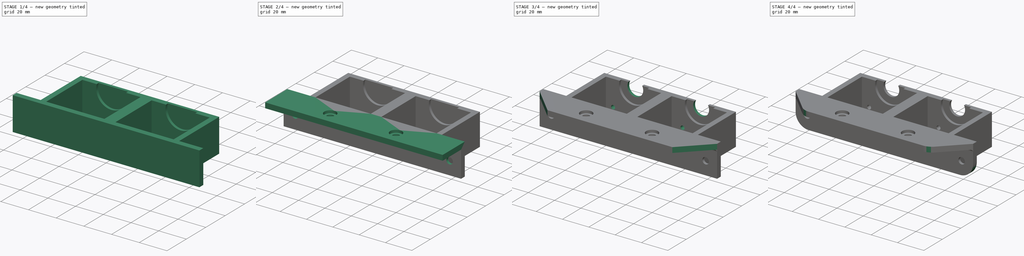
[diagram: build sequence overview — one tinted view per stage of 4, left to right]
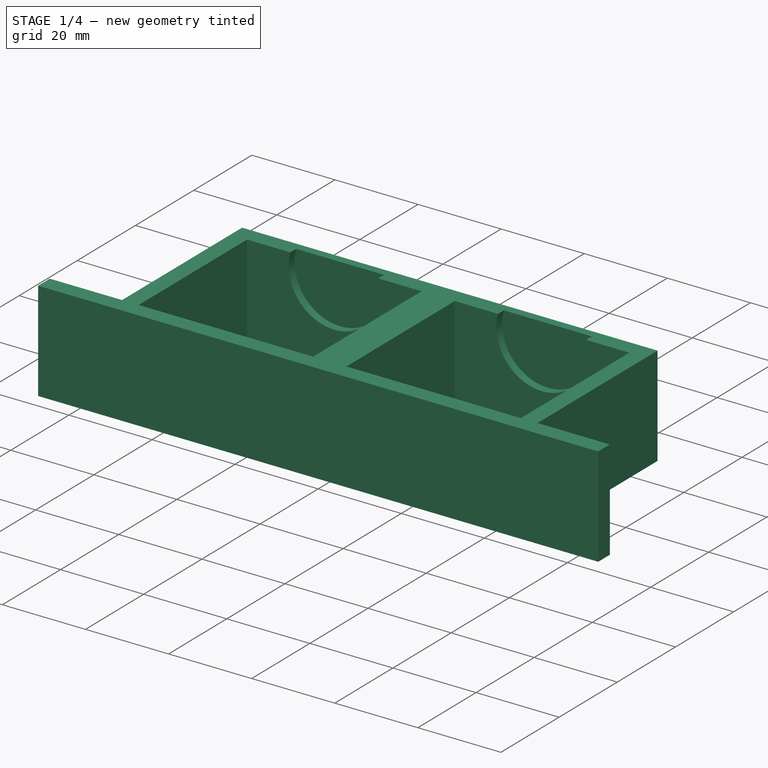
[diagram: stage 1 of 4 — iso view after this stage's code; geometry added in this stage tinted green]
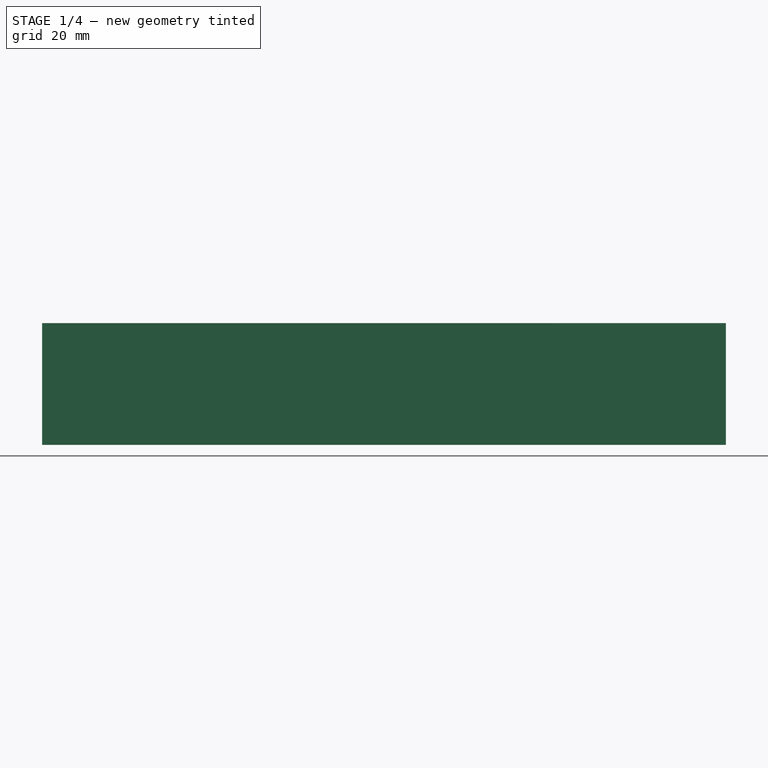
[diagram: stage 1 of 4 — front view after this stage's code; geometry added in this stage tinted green]
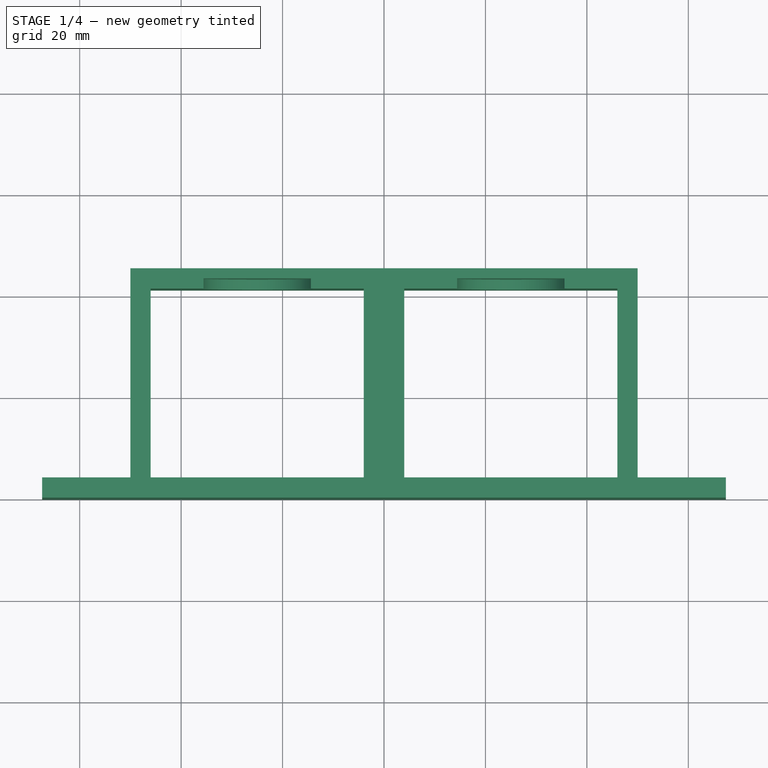
[diagram: stage 1 of 4 — top view after this stage's code; geometry added in this stage tinted green]
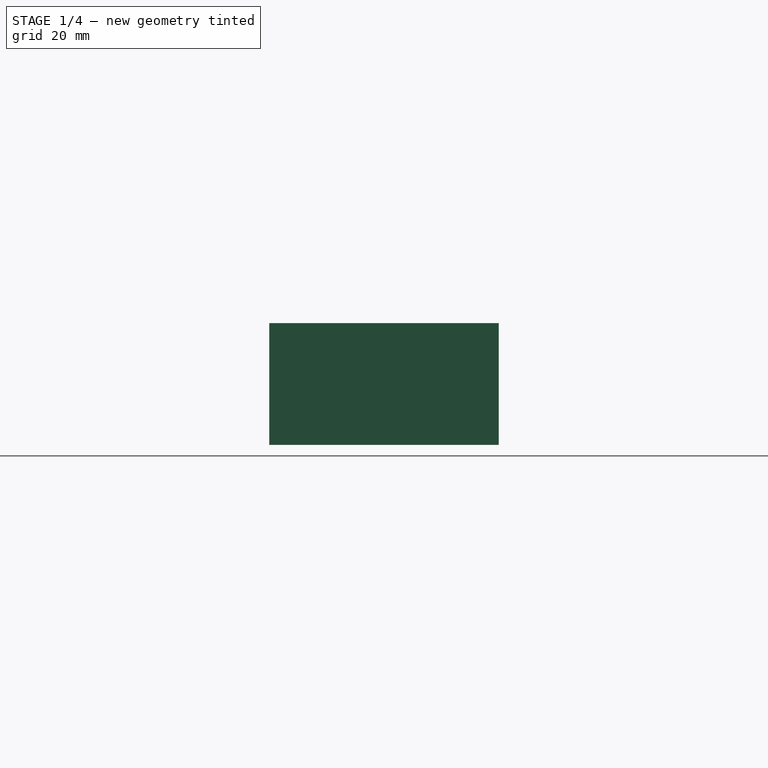
[diagram: stage 1 of 4 — right view after this stage's code; geometry added in this stage tinted green]
FCSTD DOCUMENT  (FreeCAD 0.18R15969 (Git))
Label: motormount
License: All rights reserved
LicenseURL: http://en.wikipedia.org/wiki/All_rights_reserved
objects: Sketcher::SketchObject×7, PartDesign::Fillet×3, PartDesign::Pad×2, PartDesign::Pocket×2, PartDesign::Hole×2, PartDesign::Chamfer×1, PartDesign::Body×1
note: 24 computed .brp shape members not serialized (recipe doc carries the construction recipe); baked Part::Feature solids carry a one-line shape summary decoded from their .brp

FEATURE [Sketcher::SketchObject] Sketch
  MapMode = 5
  Support = -> [XY_Plane]
  sketch-geometry (21):
    g0: LineSegment StartX=-67.4016 StartY=0 StartZ=0 EndX=67.4016 EndY=0 EndZ=0
    g1: LineSegment StartX=-67.4016 StartY=0 StartZ=0 EndX=-67.4016 EndY=4 EndZ=0
    g2: LineSegment StartX=67.4016 StartY=0 StartZ=0 EndX=67.4016 EndY=4 EndZ=0
    g3: LineSegment StartX=-67.4016 StartY=4 StartZ=0 EndX=-50 EndY=4 EndZ=0
    g4: LineSegment StartX=67.4016 StartY=4 StartZ=0 EndX=50 EndY=4 EndZ=0
    g5: LineSegment StartX=-50 StartY=4 StartZ=0 EndX=-50 EndY=45.25 EndZ=0
    g6: LineSegment StartX=-50 StartY=45.25 StartZ=0 EndX=50 EndY=45.25 EndZ=0
    g7: LineSegment StartX=50 StartY=45.25 StartZ=0 EndX=50 EndY=4 EndZ=0
    g8: LineSegment [constr] StartX=0 StartY=0 StartZ=0 EndX=-50 EndY=4 EndZ=0
    g9: LineSegment [constr] StartX=0 StartY=0 StartZ=0 EndX=50 EndY=4 EndZ=0
    g10: LineSegment StartX=46 StartY=41.25 StartZ=0 EndX=46 EndY=4 EndZ=0
    g11: LineSegment StartX=-46 StartY=4 StartZ=0 EndX=-46 EndY=41.25 EndZ=0
    g12: LineSegment [constr] StartX=-46 StartY=4 StartZ=0 EndX=0 EndY=0 EndZ=0
    g13: LineSegment [constr] StartX=0 StartY=0 StartZ=0 EndX=46 EndY=4 EndZ=0
    g14: LineSegment StartX=-46 StartY=41.25 StartZ=0 EndX=-4 EndY=41.25 EndZ=0
    g15: LineSegment StartX=46 StartY=41.25 StartZ=0 EndX=4 EndY=41.25 EndZ=0
    g16: LineSegment StartX=-46 StartY=4 StartZ=0 EndX=-4 EndY=4 EndZ=0
    g17: LineSegment StartX=46 StartY=4 StartZ=0 EndX=4 EndY=4 EndZ=0
    g18: LineSegment StartX=-4 StartY=41.25 StartZ=0 EndX=-4 EndY=4 EndZ=0
    g19: LineSegment StartX=4 StartY=41.25 StartZ=0 EndX=4 EndY=4 EndZ=0
    g20: LineSegment [constr] StartX=-4 StartY=41.25 StartZ=0 EndX=4 EndY=41.25 EndZ=0
  constraints (57):
    c: PointOnObject(g0,g-1)
    c: PointOnObject(g0,g-1)
    c: Coincident(g1,g0)
    c: Vertical(g1)
    c: Coincident(g2,g0)
    c: Vertical(g2)
    c: Equal(g1,g2)
    c: Coincident(g3,g1)
    c: Horizontal(g3)
    c: Coincident(g4,g2)
    c: Horizontal(g4)
    c: Equal(g3,g4)
    c: Coincident(g5,g3)
    c: Vertical(g5)
    c: Coincident(g6,g5)
    c: Horizontal(g6)
    c: Coincident(g7,g6)
    c: Coincident(g7,g4)
    c: Vertical(g7)
    c: Coincident(g8,g-1)
    c: Coincident(g8,g3)
    c: Coincident(g9,g-1)
    c: Coincident(g9,g4)
    c: Equal(g9,g8)
    c: Vertical(g10)
    c: Vertical(g11)
    c: Coincident(g12,g-1)
    c: Coincident(g13,g-1)
    c: Coincident(g13,g10)
    c: Equal(g13,g12)
    c: DistanceY(g1,g1) = 4
    c: DistanceY(g0,g11) = 4
    c: DistanceX(g11,g10) = 92
    c: DistanceY(g11,g11) = 37.25
    c: Coincident(g14,g11)
    c: Horizontal(g14)
    c: Coincident(g15,g10)
    c: Horizontal(g15)
    c: Equal(g14,g15)
    c: Coincident(g16,g11)
    c: Horizontal(g16)
    c: Coincident(g17,g10)
    c: Horizontal(g17)
    c: Equal(g17,g16)
    c: Equal(g16,g14)
    c: DistanceX(g14,g14) = 42
    c: Coincident(g18,g14)
    c: Coincident(g18,g16)
    c: Coincident(g19,g15)
    c: Coincident(g19,g17)
    c: Coincident(g20,g14)
    c: Horizontal(g20)
    c: Coincident(g20,g15)
    c: Coincident(g11,g12)
    c: Equal(g19,g18)
    c: DistanceX(g10,g4) = 4
    c: DistanceY(g10,g6) = 4
FEATURE [PartDesign::Pad] Pad
  Length = 24
  Length2 = 100
  Profile = -> Sketch
  Refine = true
  Type = 0
FEATURE [Sketcher::SketchObject] Sketch001
  ExternalGeometry = -> [Pad]
  MapMode = 5
  Placement = pos=(0,41.25,0) rot=(1,0,0;1.5708rad)
  Support = -> [Pad]
  sketch-geometry (6):
    g0: Circle CenterX=-25 CenterY=21 CenterZ=0 NormalX=0 NormalY=0 NormalZ=1 AngleXU=0 Radius=11
    g1: Circle CenterX=25 CenterY=21 CenterZ=0 NormalX=0 NormalY=0 NormalZ=1 AngleXU=0 Radius=11
    g2: LineSegment [constr] StartX=-46 StartY=24 StartZ=0 EndX=-25 EndY=21 EndZ=0
    g3: LineSegment [constr] StartX=-25 StartY=21 StartZ=0 EndX=-4 EndY=24 EndZ=0
    g4: LineSegment [constr] StartX=4 StartY=24 StartZ=0 EndX=25 EndY=21 EndZ=0
    g5: LineSegment [constr] StartX=25 StartY=21 StartZ=0 EndX=46 EndY=24 EndZ=0
  constraints (14):
    c: Radius(g0) = 11
    c: Equal(g0,g1)
    c: Coincident(g2,g-3)
    c: Coincident(g2,g0)
    c: Coincident(g3,g0)
    c: Coincident(g3,g-3)
    c: Coincident(g4,g-4)
    c: Coincident(g4,g1)
    c: Coincident(g5,g1)
    c: Coincident(g5,g-4)
    c: Equal(g2,g3)
    c: Equal(g3,g4)
    c: Equal(g4,g5)
    c: DistanceY(g-1,g0) = 21
FEATURE [PartDesign::Pocket] Pocket
  BaseFeature = -> Pad
  Length = 2
  Length2 = 100
  Profile = -> Sketch001
  Refine = true
  Type = 0
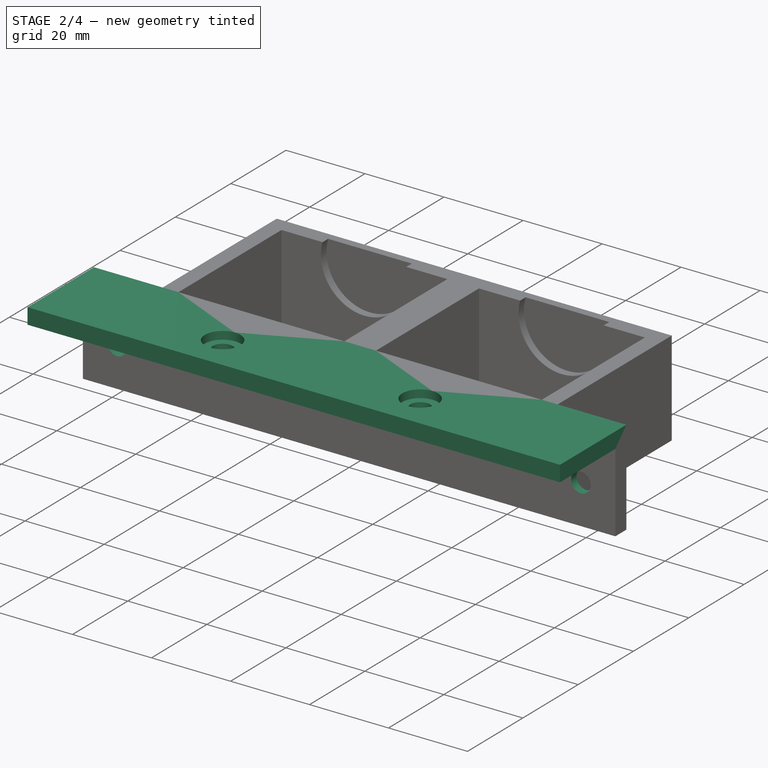
[diagram: stage 2 of 4 — iso view after this stage's code; geometry added in this stage tinted green]
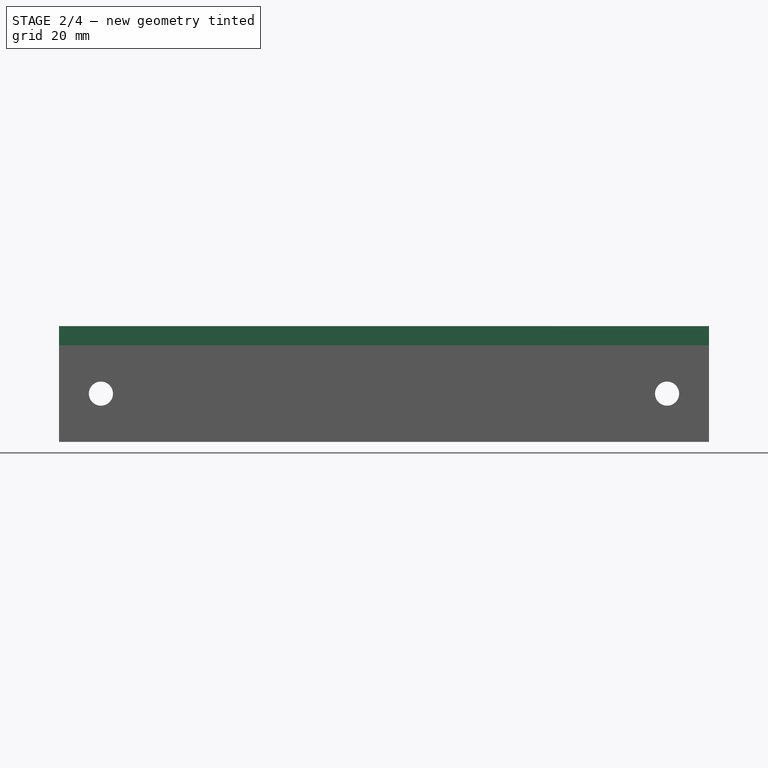
[diagram: stage 2 of 4 — front view after this stage's code; geometry added in this stage tinted green]
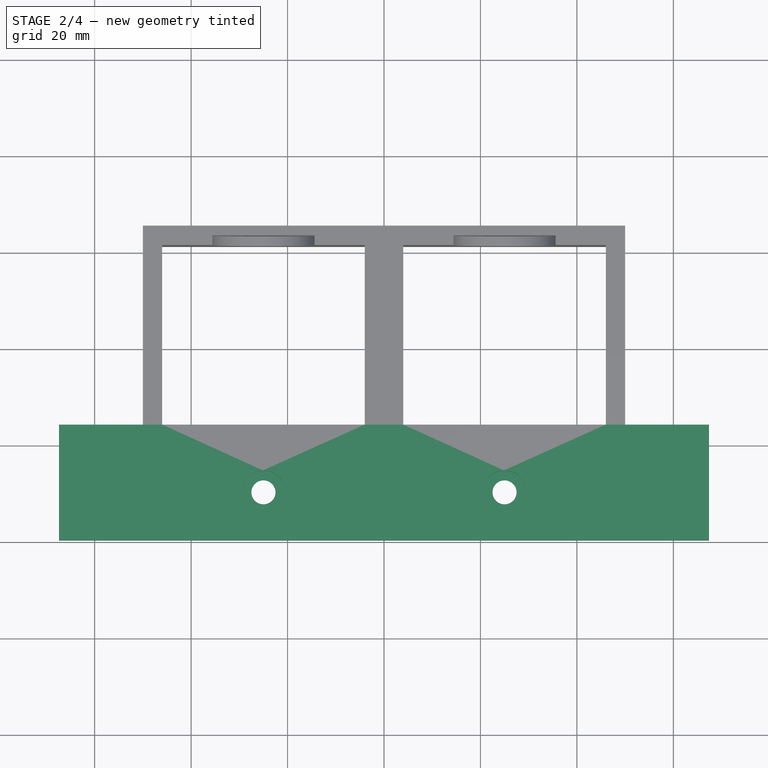
[diagram: stage 2 of 4 — top view after this stage's code; geometry added in this stage tinted green]
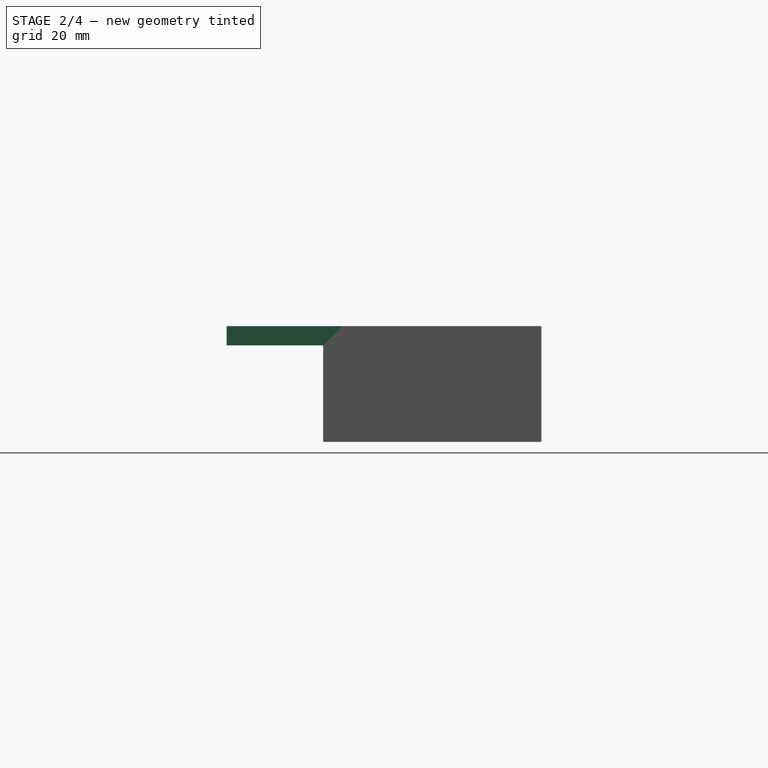
[diagram: stage 2 of 4 — right view after this stage's code; geometry added in this stage tinted green]
FEATURE [Sketcher::SketchObject] Sketch003
  MapMode = 5
  Placement = pos=(0,0,0) rot=(1,0,0;1.5708rad)
  sketch-geometry (4):
    g0: LineSegment StartX=-67.4016 StartY=24 StartZ=0 EndX=67.4016 EndY=24 EndZ=0
    g1: LineSegment StartX=67.4016 StartY=24 StartZ=0 EndX=67.4016 EndY=20 EndZ=0
    g2: LineSegment StartX=67.4016 StartY=20 StartZ=0 EndX=-67.4016 EndY=20 EndZ=0
    g3: LineSegment StartX=-67.4016 StartY=20 StartZ=0 EndX=-67.4016 EndY=24 EndZ=0
  constraints (8):
    c: Coincident(g0,g1)
    c: Coincident(g1,g2)
    c: Coincident(g2,g3)
    c: Coincident(g3,g0)
    c: Horizontal(g2)
    c: Vertical(g1)
    c: Vertical(g3)
    c: DistanceY(g1,g1) = 4
FEATURE [PartDesign::Pad] Pad002
  BaseFeature = -> Pocket
  Length = 20
  Length2 = 100
  Profile = -> Sketch003
  Refine = true
  Type = 0
FEATURE [Sketcher::SketchObject] Sketch004
  ExternalGeometry = -> [Pad002]
  MapMode = 5
  Placement = pos=(0,4,0) rot=(0,0.707107,0.707107;3.14159rad)
  sketch-geometry (6):
    g0: LineSegment [constr] StartX=-67.2839 StartY=23.8324 StartZ=0 EndX=-58.7008 EndY=10 EndZ=0
    g1: LineSegment [constr] StartX=-50.1178 StartY=23.8324 StartZ=0 EndX=-58.7008 EndY=10 EndZ=0
    g2: LineSegment [constr] StartX=50.1178 StartY=23.8324 StartZ=0 EndX=58.7008 EndY=10 EndZ=0
    g3: LineSegment [constr] StartX=67.2839 StartY=23.8324 StartZ=0 EndX=58.7008 EndY=10 EndZ=0
    g4: Circle CenterX=58.7008 CenterY=10 CenterZ=0 NormalX=0 NormalY=0 NormalZ=1 AngleXU=0 Radius=4.26046
    g5: Circle CenterX=-58.7008 CenterY=10 CenterZ=0 NormalX=0 NormalY=0 NormalZ=1 AngleXU=0 Radius=4.93613
  constraints (8):
    c: Coincident(g1,g0)
    c: Equal(g0,g1)
    c: Coincident(g3,g2)
    c: Equal(g2,g3)
    c: Coincident(g4,g2)
    c: Coincident(g5,g0)
    c: DistanceY(g-3,g5) = 10
    c: DistanceY(g-4,g4) = 10
FEATURE [PartDesign::Hole] Hole
  BaseFeature = -> Pad002
  Depth = 25
  DepthType = 0
  Diameter = 5
  DrillPoint = 1
  DrillPointAngle = 118
  HoleCutCountersinkAngle = 90
  HoleCutDepth = 2
  HoleCutDiameter = 9
  HoleCutType = 1
  ModelActualThread = false
  Profile = -> Sketch004
  Refine = true
  Tapered = false
  TaperedAngle = 90
  ThreadAngle = 0
  ThreadClass = 0
  ThreadCutOffInner = 0
  ThreadCutOffOuter = 0
  ThreadDirection = 0
  ThreadFit = 0
  ThreadPitch = 0
  ThreadSize = 0
  ThreadType = 0
  Threaded = false
FEATURE [Sketcher::SketchObject] Sketch005
  MapMode = 5
  Placement = pos=(0,1.2e-15,24) rot=(0,0,1;0rad)
  Support = -> [Hole]
  sketch-geometry (2):
    g0: Circle CenterX=-25 CenterY=-10 CenterZ=0 NormalX=0 NormalY=0 NormalZ=1 AngleXU=0 Radius=12.1715
    g1: Circle CenterX=25 CenterY=-10 CenterZ=0 NormalX=0 NormalY=0 NormalZ=1 AngleXU=0 Radius=11.9684
  constraints (4):
    c: DistanceY(g1,g-1) = 10
    c: DistanceY(g0,g-1) = 10
    c: DistanceX(g0,g-1) = 25
    c: DistanceX(g-1,g1) = 25
FEATURE [PartDesign::Hole] Hole001
  BaseFeature = -> Hole
  Depth = 25
  DepthType = 0
  Diameter = 5
  DrillPoint = 1
  DrillPointAngle = 118
  HoleCutCountersinkAngle = 90
  HoleCutDepth = 2
  HoleCutDiameter = 9
  HoleCutType = 1
  ModelActualThread = false
  Profile = -> Sketch005
  Refine = true
  Tapered = false
  TaperedAngle = 90
  ThreadAngle = 0
  ThreadClass = 0
  ThreadCutOffInner = 0
  ThreadCutOffOuter = 0
  ThreadDirection = 0
  ThreadFit = 0
  ThreadPitch = 0
  ThreadSize = 0
  ThreadType = 0
  Threaded = false
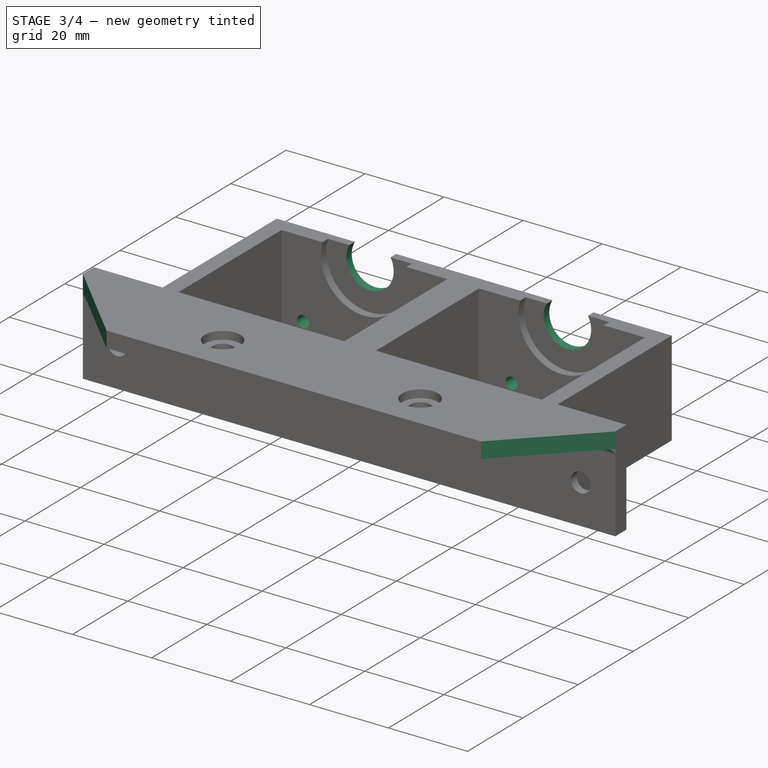
[diagram: stage 3 of 4 — iso view after this stage's code; geometry added in this stage tinted green]
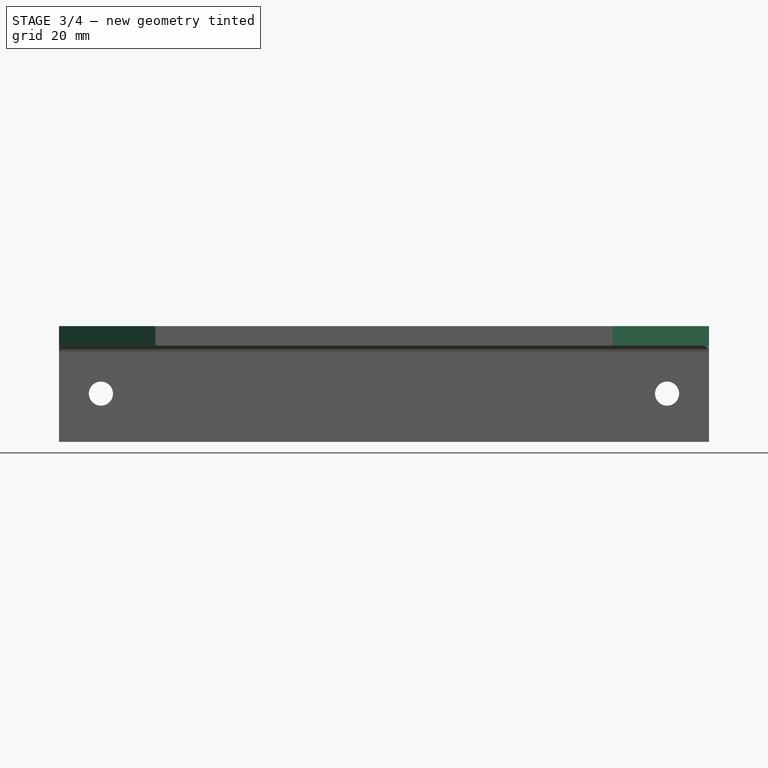
[diagram: stage 3 of 4 — front view after this stage's code; geometry added in this stage tinted green]
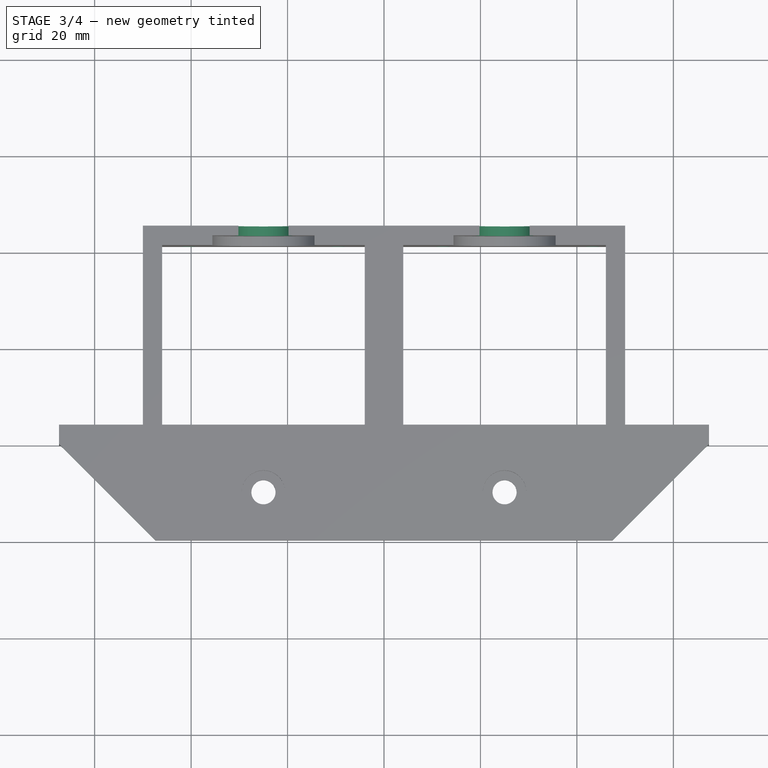
[diagram: stage 3 of 4 — top view after this stage's code; geometry added in this stage tinted green]
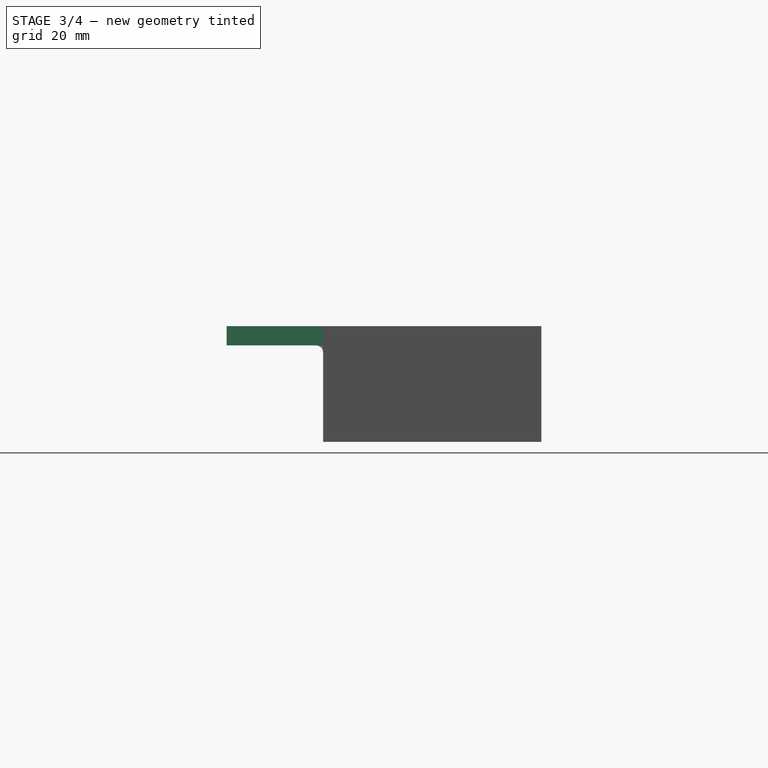
[diagram: stage 3 of 4 — right view after this stage's code; geometry added in this stage tinted green]
FEATURE [PartDesign::Chamfer] Chamfer
  Base = -> Hole001 [Edge39,Edge24]
  BaseFeature = -> Hole001
  Size = 20
FEATURE [Sketcher::SketchObject] Sketch006
  MapMode = 5
  Placement = pos=(0,41.25,0) rot=(1,0,0;1.5708rad)
  Support = -> [Chamfer]
FEATURE [Sketcher::SketchObject] Sketch007
  ExternalGeometry = -> [Chamfer]
  MapMode = 5
  Placement = pos=(0,45.25,0) rot=(0,0.707107,0.707107;3.14159rad)
  Support = -> [Chamfer]
  sketch-geometry (14):
    g0: Circle CenterX=-43.2534 CenterY=4.5 CenterZ=0 NormalX=0 NormalY=0 NormalZ=1 AngleXU=0 Radius=1.5
    g1: Circle CenterX=-12.2534 CenterY=4.5 CenterZ=0 NormalX=0 NormalY=0 NormalZ=1 AngleXU=0 Radius=1.5
    g2: Circle CenterX=9.5 CenterY=4.5 CenterZ=0 NormalX=0 NormalY=0 NormalZ=1 AngleXU=0 Radius=1.5
    g3: Circle CenterX=40.5 CenterY=4.5 CenterZ=0 NormalX=0 NormalY=0 NormalZ=1 AngleXU=0 Radius=1.5
    g4: LineSegment [constr] StartX=-43.2534 StartY=4.5 StartZ=0 EndX=-43.2534 EndY=0 EndZ=0
    g5: LineSegment [constr] StartX=-12.2534 StartY=4.5 StartZ=0 EndX=-12.2534 EndY=0 EndZ=0
    g6: LineSegment [constr] StartX=9.5 StartY=4.5 StartZ=0 EndX=9.5 EndY=0 EndZ=0
    g7: LineSegment [constr] StartX=40.5 StartY=4.5 StartZ=0 EndX=40.5 EndY=0 EndZ=0
    g8: LineSegment [constr] StartX=-25 StartY=21 StartZ=0 EndX=-12.2534 EndY=4.5 EndZ=0
    g9: LineSegment [constr] StartX=-25 StartY=21 StartZ=0 EndX=-39.8618 EndY=6.37628 EndZ=0
    g10: LineSegment [constr] StartX=25 StartY=21 StartZ=0 EndX=9.5 EndY=4.5 EndZ=0
    g11: LineSegment [constr] StartX=25 StartY=21 StartZ=0 EndX=40.5 EndY=4.5 EndZ=0
    g12: Circle CenterX=-25 CenterY=21 CenterZ=0 NormalX=0 NormalY=0 NormalZ=1 AngleXU=0 Radius=6
    g13: Circle CenterX=25 CenterY=21 CenterZ=0 NormalX=0 NormalY=0 NormalZ=1 AngleXU=0 Radius=6
  constraints (35):
    c: Coincident(g4,g0)
    c: PointOnObject(g4,g-1)
    c: Vertical(g4)
    c: Coincident(g5,g1)
    c: PointOnObject(g5,g-1)
    c: Coincident(g6,g2)
    c: Vertical(g6)
    c: Coincident(g7,g3)
    c: PointOnObject(g7,g-1)
    c: Equal(g4,g5)
    c: Equal(g5,g6)
    c: Equal(g6,g7)
    c: DistanceY(g4,g4) = 4.5
    c: Radius(g0) = 1.5
    c: Equal(g0,g1)
    c: Equal(g0,g2)
    c: Equal(g0,g3)
    c: DistanceX(g0,g1) = 31
    c: DistanceX(g2,g3) = 31
    c: Vertical(g7)
    c: PointOnObject(g6,g-1)
    c: Vertical(g5)
    c: Coincident(g8,g-3)
    c: Coincident(g8,g1)
    c: Coincident(g9,g8)
    c: Coincident(g10,g-4)
    c: Coincident(g10,g2)
    c: Coincident(g11,g10)
    c: Coincident(g11,g3)
    c: Equal(g10,g11)
    c: Equal(g9,g8)
    c: Coincident(g12,g8)
    c: Coincident(g13,g10)
    c: Radius(g13) = 6
    c: Equal(g13,g12)
FEATURE [PartDesign::Pocket] Pocket001
  BaseFeature = -> Chamfer
  Length = 5
  Length2 = 100
  Profile = -> Sketch007
  Refine = true
  Type = 0
FEATURE [PartDesign::Fillet] Fillet
  Base = -> Pocket001 [Edge48]
  BaseFeature = -> Pocket001
  Radius = 1.5
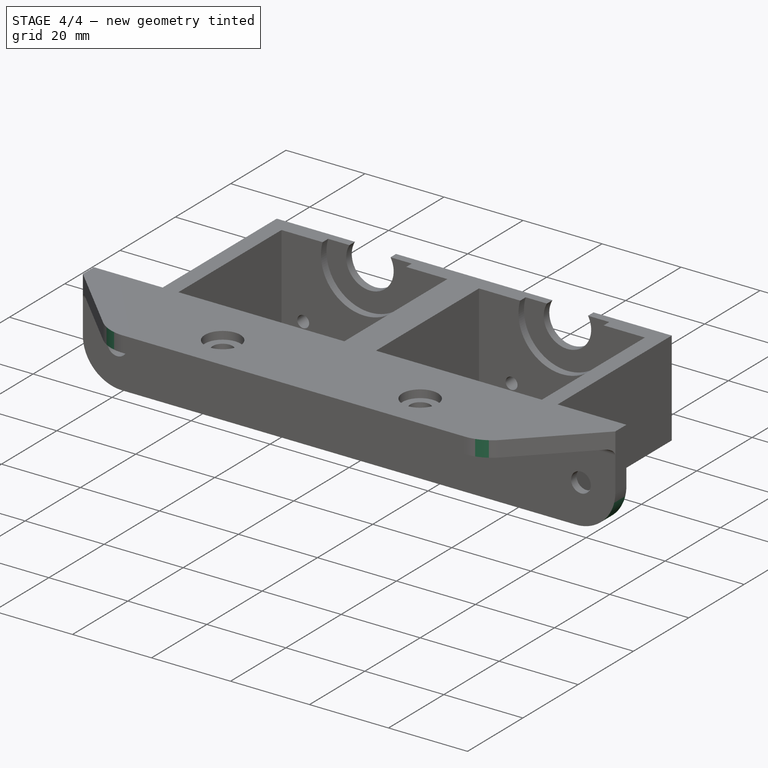
[diagram: stage 4 of 4 — iso view after this stage's code; geometry added in this stage tinted green]
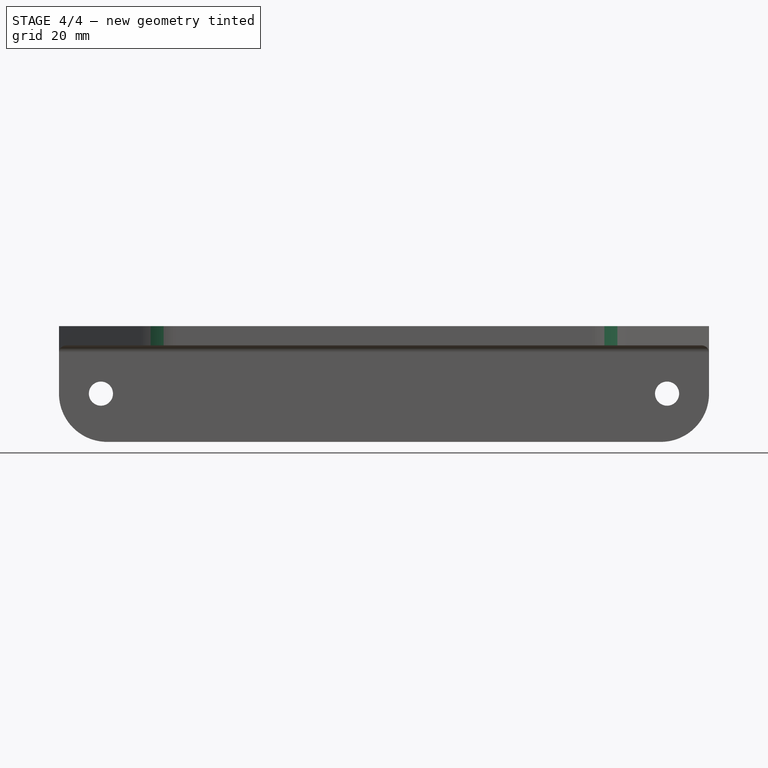
[diagram: stage 4 of 4 — front view after this stage's code; geometry added in this stage tinted green]
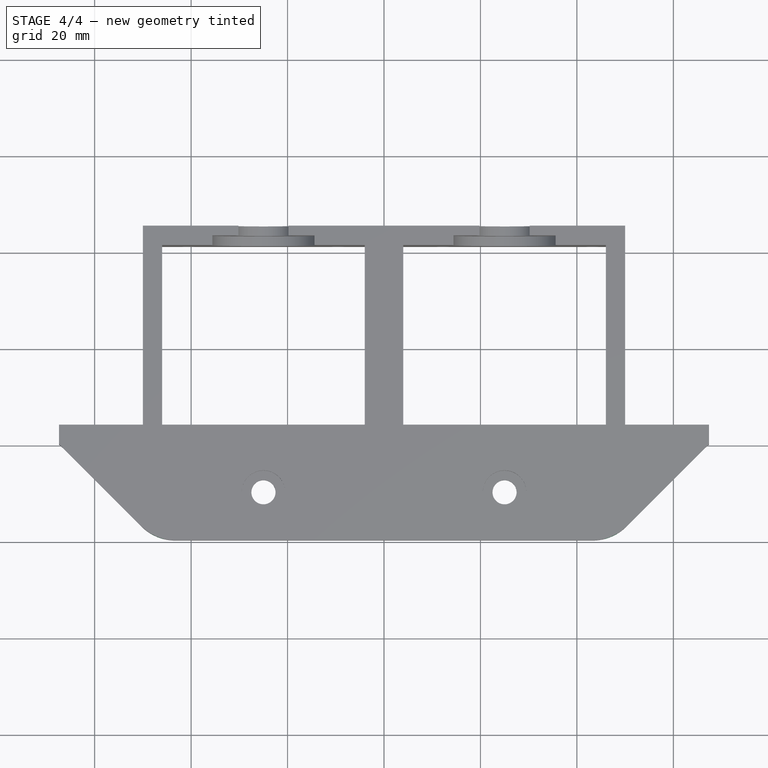
[diagram: stage 4 of 4 — top view after this stage's code; geometry added in this stage tinted green]
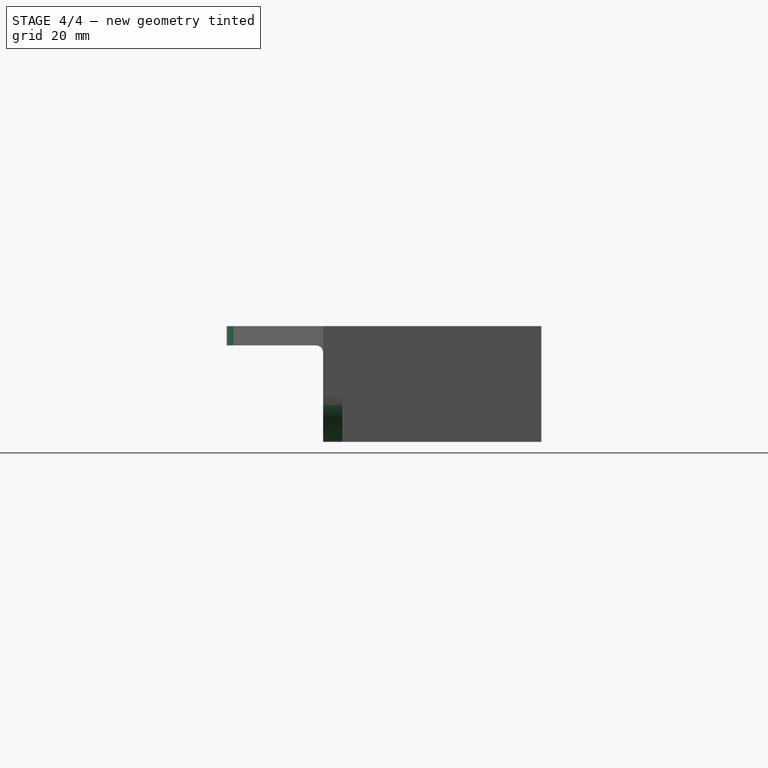
[diagram: stage 4 of 4 — right view after this stage's code; geometry added in this stage tinted green]
FEATURE [PartDesign::Fillet] Fillet001
  Base = -> Fillet [Edge21,Edge3]
  BaseFeature = -> Fillet
  Radius = 10
FEATURE [PartDesign::Fillet] Fillet002
  Base = -> Fillet001 [Edge85,Edge18]
  BaseFeature = -> Fillet001
  Radius = 10
FEATURE [PartDesign::Body] Body
  Group = -> [Sketch,Pad,Sketch001,Pocket,Sketch003,Pad002,Sketch004,Hole,Sketch005,Hole001,Chamfer,Sketch006,Sketch007,Pocket001,Fillet,Fillet001,Fillet002]
  Origin = -> Origin
  Tip = -> Fillet002
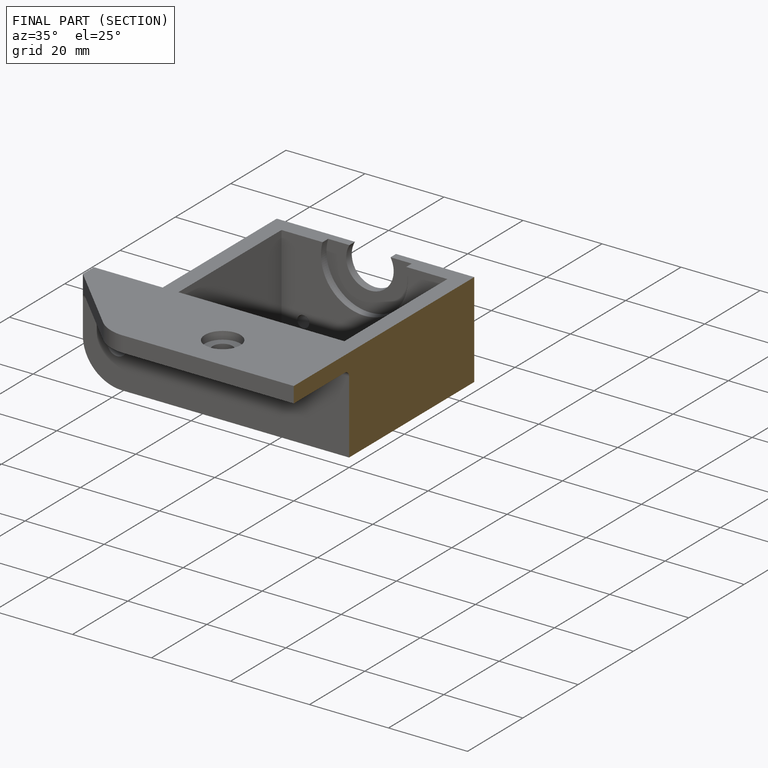
[diagram: finished part — half-section view (interior)]
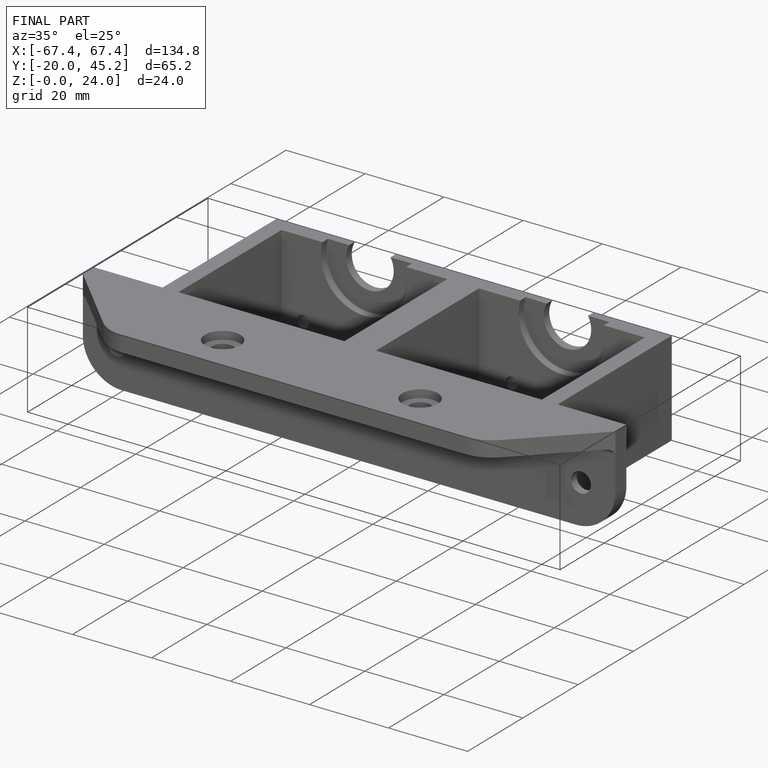
[diagram: finished part — iso view with bounding-box wireframe]
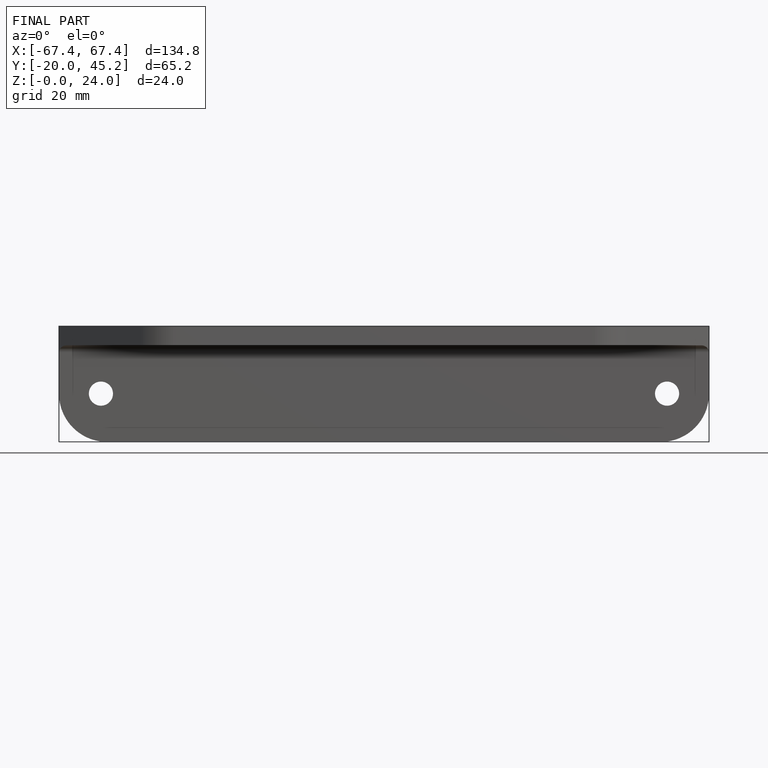
[diagram: finished part — front view with bounding-box wireframe]
